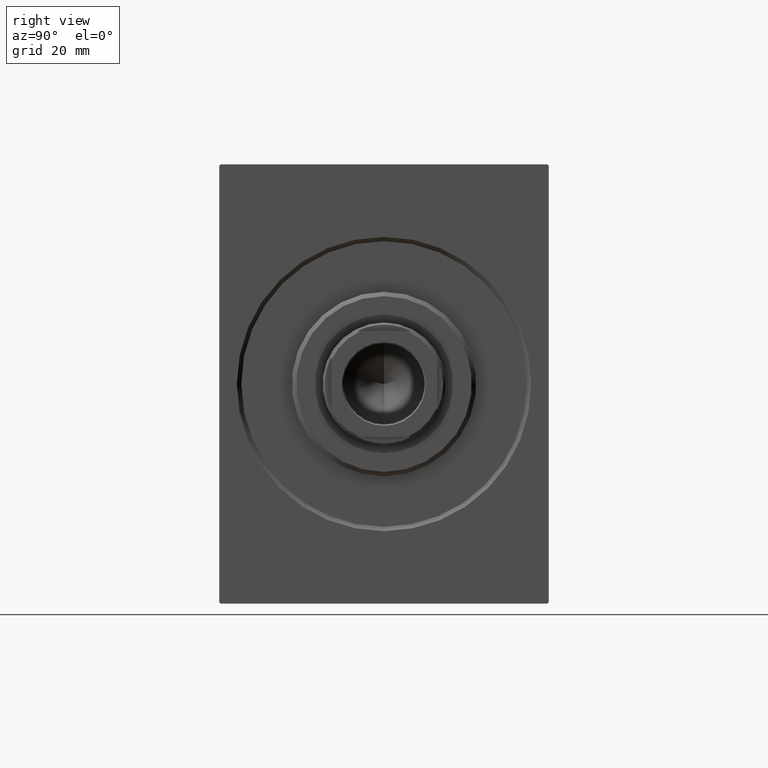
[diagram: clean part render]
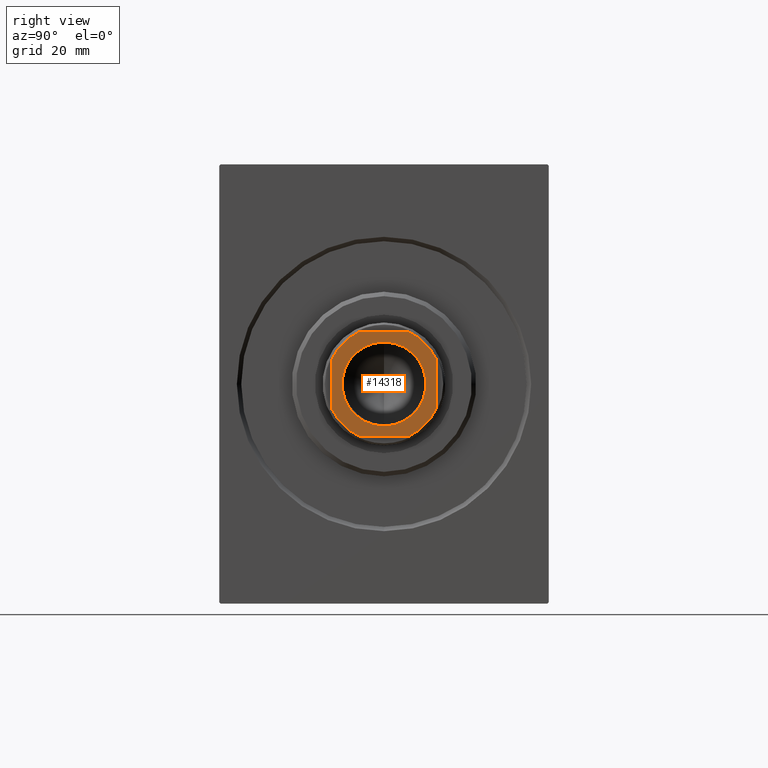
[diagram: same view with one face highlighted and labeled with its STEP entity id]
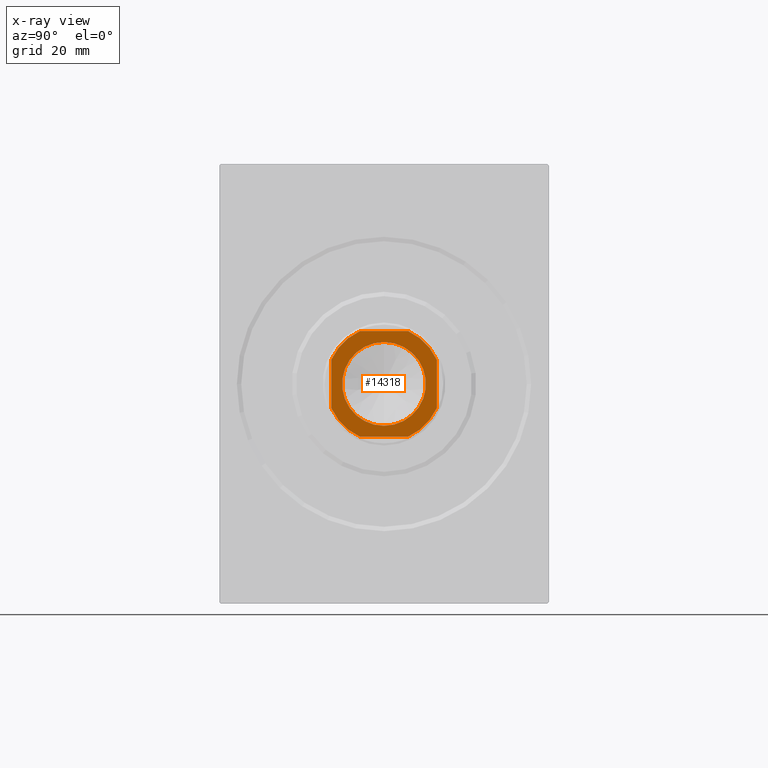
[diagram: x-ray of the same camera — body ghosted, the highlighted face saturated]
A machine part, right view. The second image highlights one B-rep face of the part: STEP entity #14318.
The next image is the same camera in x-ray: the body ghosted, the highlighted face saturated — about 0% of this face is hidden behind the body in this view.
In plain terms, the highlighted planar face has unit normal (1, 0, -0).
Its self-contained STEP definition (entity closure, byte-faithful):
#761 = VERTEX_POINT ( 'NONE', #1249 ) ;
#892 = ORIENTED_EDGE ( 'NONE', *, *, #18776, .T. ) ;
#912 = CARTESIAN_POINT ( 'NONE',  ( 0.000000000000000000, 0.000000000000000000, 96.00000000000000000 ) ) ;
#1249 = CARTESIAN_POINT ( 'NONE',  ( -12.00000000000000000, -5.499090833947057888, 96.00000000000000000 ) ) ;
#1398 = ORIENTED_EDGE ( 'NONE', *, *, #30978, .T. ) ;
#1495 = DIRECTION ( 'NONE',  ( -0.000000000000000000, 0.000000000000000000, 1.000000000000000000 ) ) ;
#1603 = EDGE_CURVE ( 'NONE', #20677, #19217, #23160, .T. ) ;
#2290 = CIRCLE ( 'NONE', #26363, 13.20000000000000995 ) ;
#2343 = DIRECTION ( 'NONE',  ( 1.000000000000000000, 0.000000000000000000, 0.000000000000000000 ) ) ;
#2687 = VERTEX_POINT ( 'NONE', #27831 ) ;
#2901 = VECTOR ( 'NONE', #41153, 1000.000000000000000 ) ;
#3540 = VECTOR ( 'NONE', #39354, 1000.000000000000000 ) ;
#4102 = DIRECTION ( 'NONE',  ( -0.000000000000000000, 0.000000000000000000, 1.000000000000000000 ) ) ;
#4336 = DIRECTION ( 'NONE',  ( 0.000000000000000000, -0.000000000000000000, -1.000000000000000000 ) ) ;
#5156 = PLANE ( 'NONE',  #31071 ) ;
#5220 = ORIENTED_EDGE ( 'NONE', *, *, #16191, .T. ) ;
#7324 = CIRCLE ( 'NONE', #27993, 13.20000000000002238 ) ;
#7596 = DIRECTION ( 'NONE',  ( 0.000000000000000000, -0.000000000000000000, -1.000000000000000000 ) ) ;
#7972 = CARTESIAN_POINT ( 'NONE',  ( 0.000000000000000000, 0.000000000000000000, 96.00000000000000000 ) ) ;
#8064 = CIRCLE ( 'NONE', #28026, 13.20000000000000995 ) ;
#8185 = DIRECTION ( 'NONE',  ( 1.000000000000000000, 0.000000000000000000, 0.000000000000000000 ) ) ;
#8951 = ORIENTED_EDGE ( 'NONE', *, *, #16995, .T. ) ;
#9003 = FACE_BOUND ( 'NONE', #33447, .T. ) ;
#10124 = CARTESIAN_POINT ( 'NONE',  ( 11.99999999999999645, 5.499090833947039236, 96.00000000000000000 ) ) ;
#10314 = DIRECTION ( 'NONE',  ( 2.168404344971008868E-16, -1.000000000000000000, 0.000000000000000000 ) ) ;
#10529 = CARTESIAN_POINT ( 'NONE',  ( -12.00000000000000355, 11.99999999999999645, 96.00000000000000000 ) ) ;
#12562 = CIRCLE ( 'NONE', #22176, 9.549999999999988276 ) ;
#12612 = AXIS2_PLACEMENT_3D ( 'NONE', #912, #7596, #39690 ) ;
#13051 = CARTESIAN_POINT ( 'NONE',  ( 0.000000000000000000, 0.000000000000000000, 96.00000000000000000 ) ) ;
#13100 = CARTESIAN_POINT ( 'NONE',  ( 11.99999999999999645, 11.99999999999999645, 96.00000000000000000 ) ) ;
#13321 = VECTOR ( 'NONE', #29321, 1000.000000000000000 ) ;
#14183 = VERTEX_POINT ( 'NONE', #10124 ) ;
#14228 = AXIS2_PLACEMENT_3D ( 'NONE', #38259, #21893, #15227 ) ;
#14318 = ADVANCED_FACE ( 'NONE', ( #9003, #41118 ), #5156, .T. ) ;
#14421 = EDGE_CURVE ( 'NONE', #22651, #14183, #29470, .T. ) ;
#14795 = CARTESIAN_POINT ( 'NONE',  ( 12.00000000000000000, -5.499090833947034795, 96.00000000000000000 ) ) ;
#15227 = DIRECTION ( 'NONE',  ( 1.000000000000000000, 0.000000000000000000, 0.000000000000000000 ) ) ;
#15315 = CARTESIAN_POINT ( 'NONE',  ( -12.00000000000000355, 11.99999999999999645, 96.00000000000000000 ) ) ;
#16191 = EDGE_CURVE ( 'NONE', #17869, #20677, #38137, .T. ) ;
#16995 = EDGE_CURVE ( 'NONE', #22028, #42227, #12562, .T. ) ;
#17063 = DIRECTION ( 'NONE',  ( 1.000000000000000000, 0.000000000000000000, 0.000000000000000000 ) ) ;
#17515 = VERTEX_POINT ( 'NONE', #28821 ) ;
#17869 = VERTEX_POINT ( 'NONE', #31727 ) ;
#18729 = CARTESIAN_POINT ( 'NONE',  ( 0.000000000000000000, 0.000000000000000000, 96.00000000000000000 ) ) ;
#18776 = EDGE_CURVE ( 'NONE', #17515, #22651, #2290, .T. ) ;
#19186 = CARTESIAN_POINT ( 'NONE',  ( -9.549999999999988276, 1.169537693185720980E-15, 96.00000000000000000 ) ) ;
#19217 = VERTEX_POINT ( 'NONE', #21717 ) ;
#19432 = ORIENTED_EDGE ( 'NONE', *, *, #41327, .T. ) ;
#20233 = LINE ( 'NONE', #10529, #28655 ) ;
#20677 = VERTEX_POINT ( 'NONE', #31352 ) ;
#20911 = ORIENTED_EDGE ( 'NONE', *, *, #21436, .T. ) ;
#21137 = ORIENTED_EDGE ( 'NONE', *, *, #29856, .T. ) ;
#21436 = EDGE_CURVE ( 'NONE', #19217, #761, #20233, .T. ) ;
#21717 = CARTESIAN_POINT ( 'NONE',  ( -12.00000000000000178, 5.499090833947057000, 96.00000000000000000 ) ) ;
#21775 = DIRECTION ( 'NONE',  ( 1.000000000000000000, 0.000000000000000000, 0.000000000000000000 ) ) ;
#21893 = DIRECTION ( 'NONE',  ( -0.000000000000000000, 0.000000000000000000, 1.000000000000000000 ) ) ;
#22028 = VERTEX_POINT ( 'NONE', #19186 ) ;
#22176 = AXIS2_PLACEMENT_3D ( 'NONE', #36859, #4336, #17063 ) ;
#22651 = VERTEX_POINT ( 'NONE', #14795 ) ;
#23160 = CIRCLE ( 'NONE', #14228, 13.20000000000002238 ) ;
#23355 = ORIENTED_EDGE ( 'NONE', *, *, #40337, .T. ) ;
#25010 = CARTESIAN_POINT ( 'NONE',  ( 0.000000000000000000, 0.000000000000000000, 96.00000000000000000 ) ) ;
#26093 = CARTESIAN_POINT ( 'NONE',  ( -11.99999999999999822, -12.00000000000000355, 96.00000000000000000 ) ) ;
#26363 = AXIS2_PLACEMENT_3D ( 'NONE', #25010, #31679, #21775 ) ;
#27831 = CARTESIAN_POINT ( 'NONE',  ( -5.499090833947052559, -12.00000000000000355, 96.00000000000000000 ) ) ;
#27993 = AXIS2_PLACEMENT_3D ( 'NONE', #13051, #30042, #30255 ) ;
#28026 = AXIS2_PLACEMENT_3D ( 'NONE', #7972, #4102, #8185 ) ;
#28655 = VECTOR ( 'NONE', #10314, 1000.000000000000000 ) ;
#28821 = CARTESIAN_POINT ( 'NONE',  ( 5.499090833947025914, -12.00000000000000355, 96.00000000000000000 ) ) ;
#29321 = DIRECTION ( 'NONE',  ( 1.000000000000000000, 0.000000000000000000, 0.000000000000000000 ) ) ;
#29470 = LINE ( 'NONE', #13100, #3540 ) ;
#29856 = EDGE_CURVE ( 'NONE', #42227, #22028, #40766, .T. ) ;
#30042 = DIRECTION ( 'NONE',  ( -0.000000000000000000, 0.000000000000000000, 1.000000000000000000 ) ) ;
#30255 = DIRECTION ( 'NONE',  ( 1.000000000000000000, 0.000000000000000000, 0.000000000000000000 ) ) ;
#30978 = EDGE_CURVE ( 'NONE', #2687, #17515, #38390, .T. ) ;
#31071 = AXIS2_PLACEMENT_3D ( 'NONE', #18729, #1495, #2343 ) ;
#31352 = CARTESIAN_POINT ( 'NONE',  ( -5.499090833947067658, 11.99999999999999645, 96.00000000000000000 ) ) ;
#31679 = DIRECTION ( 'NONE',  ( -0.000000000000000000, 0.000000000000000000, 1.000000000000000000 ) ) ;
#31727 = CARTESIAN_POINT ( 'NONE',  ( 5.499090833947041901, 11.99999999999999645, 96.00000000000000000 ) ) ;
#33447 = EDGE_LOOP ( 'NONE', ( #21137, #8951 ) ) ;
#35758 = ORIENTED_EDGE ( 'NONE', *, *, #14421, .T. ) ;
#35829 = EDGE_LOOP ( 'NONE', ( #35758, #19432, #5220, #38252, #20911, #23355, #1398, #892 ) ) ;
#36859 = CARTESIAN_POINT ( 'NONE',  ( 0.000000000000000000, 0.000000000000000000, 96.00000000000000000 ) ) ;
#37806 = CARTESIAN_POINT ( 'NONE',  ( 9.549999999999988276, 0.000000000000000000, 96.00000000000000000 ) ) ;
#38137 = LINE ( 'NONE', #15315, #2901 ) ;
#38252 = ORIENTED_EDGE ( 'NONE', *, *, #1603, .T. ) ;
#38259 = CARTESIAN_POINT ( 'NONE',  ( 0.000000000000000000, 0.000000000000000000, 96.00000000000000000 ) ) ;
#38390 = LINE ( 'NONE', #26093, #13321 ) ;
#39354 = DIRECTION ( 'NONE',  ( -2.168404344971008868E-16, 1.000000000000000000, -0.000000000000000000 ) ) ;
#39690 = DIRECTION ( 'NONE',  ( 1.000000000000000000, 0.000000000000000000, 0.000000000000000000 ) ) ;
#40337 = EDGE_CURVE ( 'NONE', #761, #2687, #7324, .T. ) ;
#40766 = CIRCLE ( 'NONE', #12612, 9.549999999999988276 ) ;
#41118 = FACE_OUTER_BOUND ( 'NONE', #35829, .T. ) ;
#41153 = DIRECTION ( 'NONE',  ( -1.000000000000000000, -0.000000000000000000, -0.000000000000000000 ) ) ;
#41327 = EDGE_CURVE ( 'NONE', #14183, #17869, #8064, .T. ) ;
#42227 = VERTEX_POINT ( 'NONE', #37806 ) ;